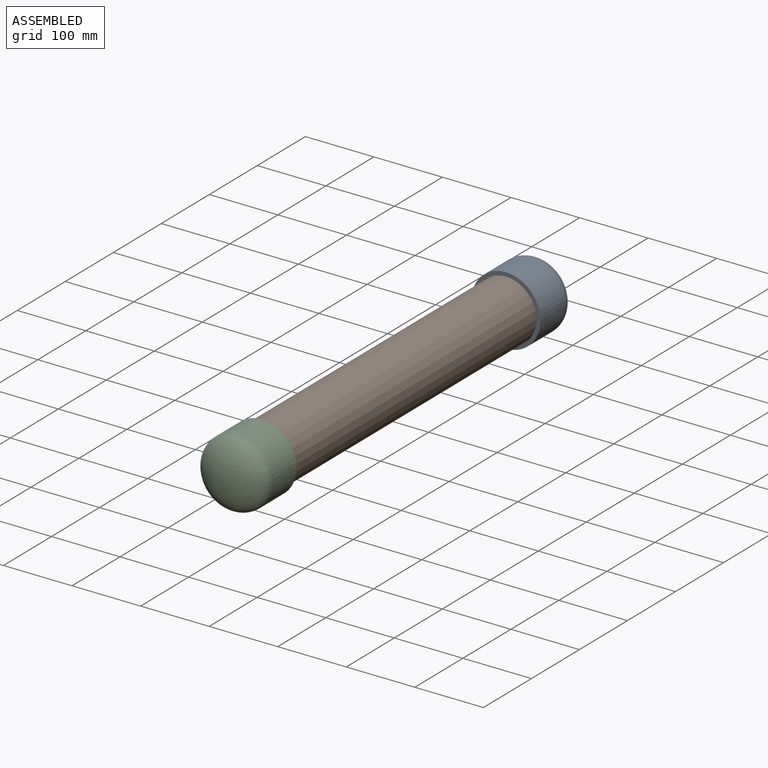
[diagram: assembled view]
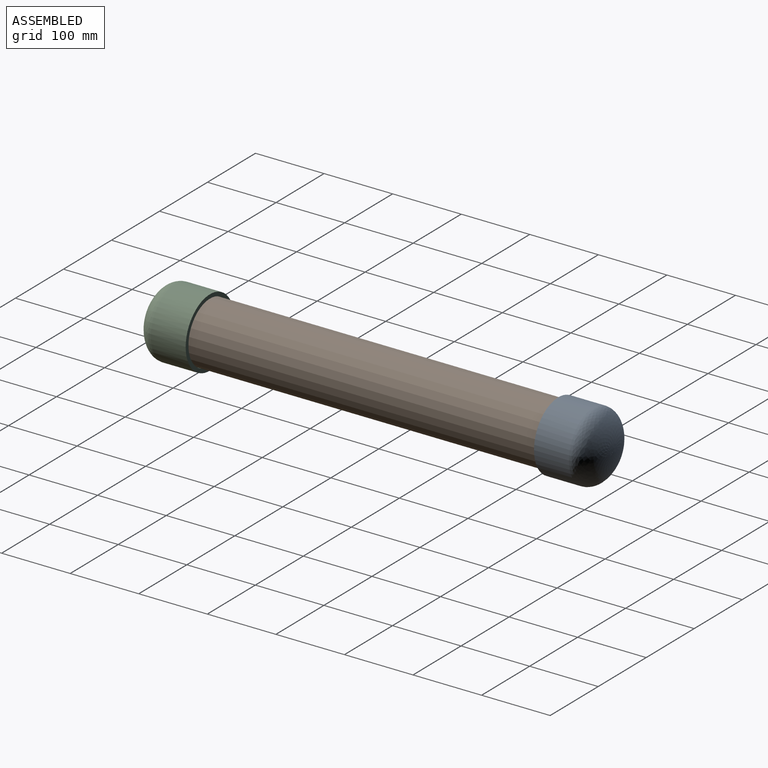
[diagram: assembled view, second angle]
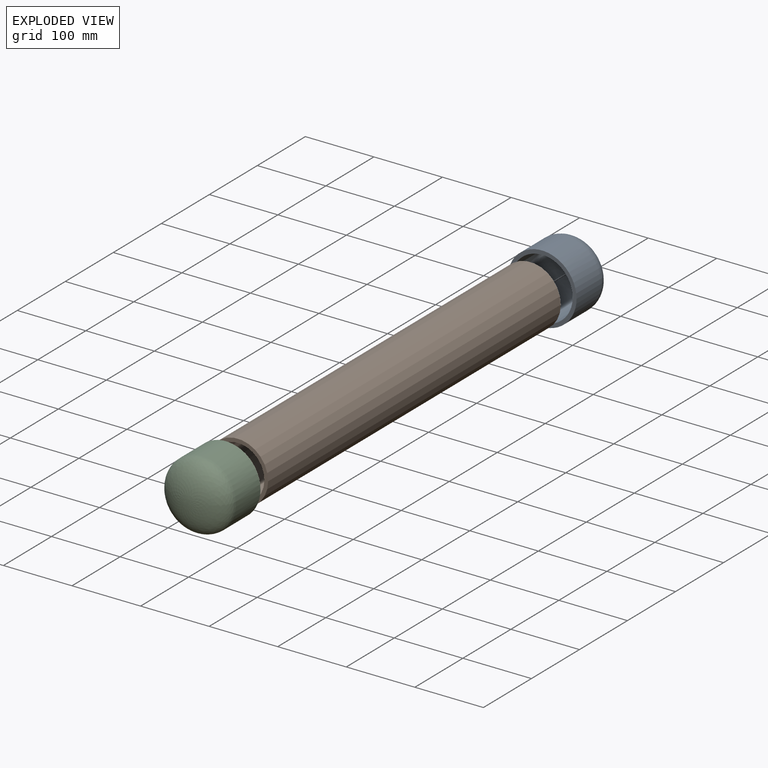
[diagram: exploded view]
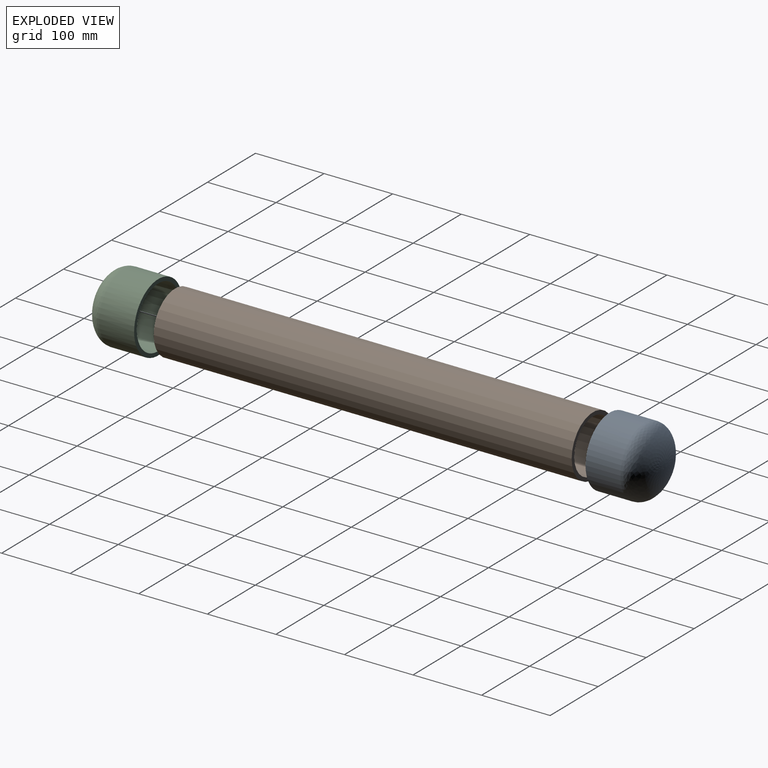
[diagram: exploded view, second angle]
ASSEMBLY  parts=3 mates=2
PART A: 7 faces, bbox 80.1x100.7x100.7 mm
  f0: revolved ~88.7x44.35mm, area 4352.9mm2, adj f2,f5
  f1: revolved ~100.69x50.34mm, area 5866.5mm2, adj f3,f4
  f2: cone r=44.35mm half-angle=0.3deg, axis (-1,0,0), area 14204.3mm2, adj f0,f5,f6
  f3: cylinder r=50.34mm len=100.69mm, axis (-1,0,0), area 16068.7mm2, adj f1,f4,f6
  f4: revolved ~100.69x50.34mm, area 5866.5mm2, adj f1,f3
  f5: revolved ~88.7x44.35mm, area 4352.9mm2, adj f0,f2
  f6: plane 100.69x100.69mm, normal (-1,0,0), area 1698mm2, adj f2,f3
PART B: 4 faces, bbox 88.9x88.9x609.6 mm
  f0: cylinder r=38.96mm len=609.6mm, axis (0,0,-1), area 149239.5mm2, adj f2,f3
  f1: cylinder r=44.45mm len=609.6mm, axis (0,0,-1), area 170253.7mm2, adj f2,f3
  f2: plane 88.9x88.9mm, normal (0,0,1), area 1437.7mm2, adj f0,f1
  f3: plane 88.9x88.9mm, normal (0,0,-1), area 1437.7mm2, adj f0,f1
PART C: same geometry as A
PLACE A rot(axis=(0.58,0.58,0.58),120deg) t=(-47.26,268.57,-166.89)mm
PLACE B rot(axis=(1,0,0),90deg) t=(-47.26,279.32,-166.89)mm fixed
PLACE C rot(axis=(0.58,-0.58,-0.58),120deg) t=(-47.26,-319.54,-166.89)mm
MATE fastened B.f1 <-> A.f2  axis (0,1,0) through (-47.26,279.32,-166.89)mm
MATE fastened B.f1 <-> C.f2  axis (0,-1,0) through (-47.26,-330.28,-166.89)mm
